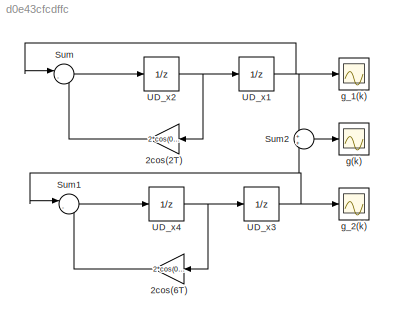
MODEL slx_d0e43cfcdffc
KIND model
CONFIG AbsTol = auto
CONFIG EnableMultiTasking = off
CONFIG FixedStep = 0.25
CONFIG MaxStep = auto
CONFIG MinStep = auto
CONFIG RelTol = 1e-3
CONFIG SampleTimeConstraint = Unconstrained
CONFIG SolverName = FixedStepAuto
CONFIG StartTime = 0.0
CONFIG StopTime = 10.0
BLOCK [Gain] 2cos(2T)
  Gain = 2*cos(0.25*2)
BLOCK [Gain] 2cos(6T)
  Gain = 2*cos(0.25*6)
BLOCK [Sum] Sum
  Inputs = |-+
BLOCK [Sum] Sum1
  Inputs = |-+
BLOCK [Sum] Sum2
BLOCK [UnitDelay] UD_x1
  HasFrameUpgradeWarning = on
  SampleTime = -1
BLOCK [UnitDelay] UD_x2
  HasFrameUpgradeWarning = on
  InitialCondition = 0.4*sin(0.25*2)
  SampleTime = -1
BLOCK [UnitDelay] UD_x3
  HasFrameUpgradeWarning = on
  InitialCondition = 2.5
  SampleTime = -1
BLOCK [UnitDelay] UD_x4
  HasFrameUpgradeWarning = on
  InitialCondition = 2.5*cos(0.25*6)
  SampleTime = -1
BLOCK [Scope] g(k)
  Floating = off
  NumInputPorts = 1
  ScopeSpecificationString = Simulink.scopes.TimeScopeBlockCfg('CurrentConfiguration', extmgr.ConfigurationSet(extmgr.Configuration('Core','General UI',true,'FigureColor',[1 1 1]),extmgr.Configuration('Core','Source UI',true),extmgr.Configuration('Sources','WiredSimulink',true,'DataLoggingVariableName','ScopeData2'),extmgr.Configuration('Visuals','Time Domain',true,'SerializedDisplays',{struct('MinYLimReal','-3.54732','MaxYLi...<+2421ch>
BLOCK [Scope] g_1(k)
  Floating = off
  NumInputPorts = 1
  ScopeSpecificationString = Simulink.scopes.TimeScopeBlockCfg('CurrentConfiguration', extmgr.ConfigurationSet(extmgr.Configuration('Core','General UI',true,'FigureColor',[1 1 1]),extmgr.Configuration('Core','Source UI',true),extmgr.Configuration('Sources','WiredSimulink',true),extmgr.Configuration('Visuals','Time Domain',true,'SerializedDisplays',{struct('MinYLimReal','-0.49987','MaxYLimReal','0.49887','YLabelReal','g_1(k)',...<+2397ch>
BLOCK [Scope] g_2(k)
  Floating = off
  NumInputPorts = 1
  ScopeSpecificationString = Simulink.scopes.TimeScopeBlockCfg('CurrentConfiguration', extmgr.ConfigurationSet(extmgr.Configuration('Core','General UI',true,'FigureColor',[1 1 1]),extmgr.Configuration('Core','Source UI',true),extmgr.Configuration('Sources','WiredSimulink',true,'DataLoggingVariableName','ScopeData1'),extmgr.Configuration('Visuals','Time Domain',true,'SerializedDisplays',{struct('MinYLimReal','-3.12035','MaxYLi...<+2440ch>
LINE 2cos(2T):1 -> Sum:2
LINE 2cos(6T):1 -> Sum1:2
LINE Sum1:1 -> UD_x4:1
LINE Sum2:1 -> g(k):1
LINE Sum:1 -> UD_x2:1
NET UD_x1:1 -> Sum2:1, Sum:1, g_1(k):1
NET UD_x2:1 -> 2cos(2T):1, UD_x1:1
NET UD_x3:1 -> Sum1:1, Sum2:2, g_2(k):1
NET UD_x4:1 -> 2cos(6T):1, UD_x3:1
note: NET lines group one-source signal fan-out (src -> all destinations, sorted); 1:1 wires keep LINE
